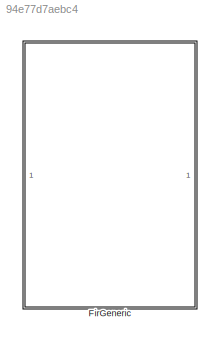
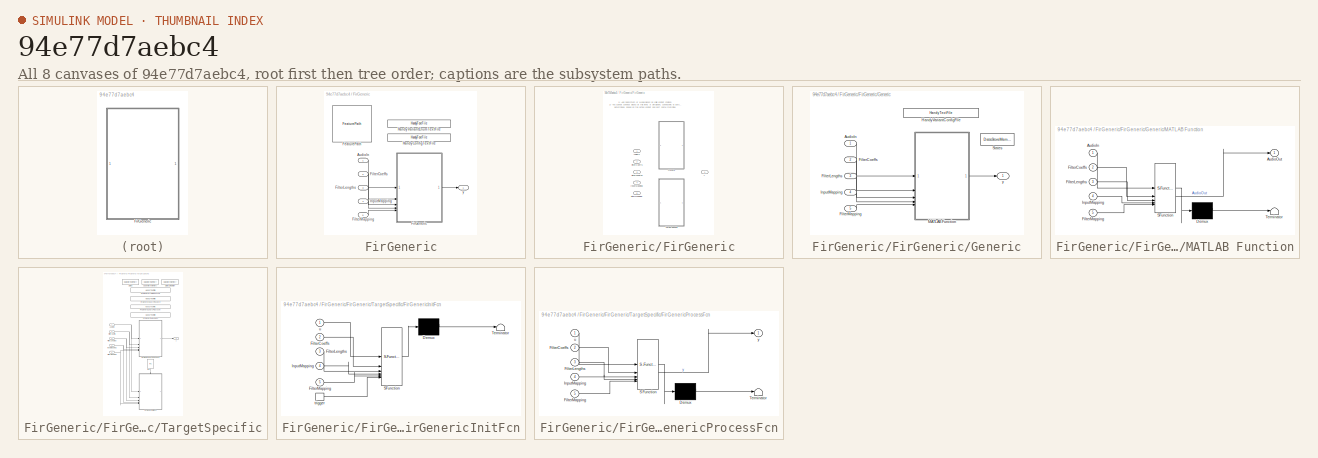
[diagram: thumbnail index - all 8 canvases of the model, root first then tree order]
MODEL slx_94e77d7aebc4
KIND library
CONFIG AbsTol = auto
CONFIG EnableMultiTasking = off
CONFIG FixedStep = auto
CONFIG MaxStep = auto
CONFIG MinStep = auto
CONFIG RelTol = 1e-3
CONFIG SampleTimeConstraint = Unconstrained
CONFIG SolverName = VariableStepAuto
CONFIG StartTime = 0.0
CONFIG StopTime = 10.0
BLOCK [SubSystem] FirGeneric
BLOCK [Inport] FirGeneric/AudioIn
BLOCK [Reference] FirGeneric/FeaturePath  REF=FeaturePath/FeaturePath
  SourceBlock = FeaturePath/FeaturePath
  SourceProductName = Bose Talaria
  SourceType = Talaria Feature Path
BLOCK [Inport] FirGeneric/FilterCoeffs
  Port = 2
BLOCK [Inport] FirGeneric/FilterLengths
  Port = 3
BLOCK [Inport] FirGeneric/FilterMapping
  Port = 5
BLOCK [SubSystem] FirGeneric/FirGeneric
  Variant = on
BLOCK [Inport] FirGeneric/FirGeneric/AudioIn
BLOCK [Inport] FirGeneric/FirGeneric/FilterCoeffs
  Port = 2
BLOCK [Inport] FirGeneric/FirGeneric/FilterLengths
  Port = 3
BLOCK [Inport] FirGeneric/FirGeneric/FilterMapping
  Port = 5
BLOCK [SubSystem] FirGeneric/FirGeneric/Generic
  VariantControl = (default)
BLOCK [Inport] FirGeneric/FirGeneric/Generic/AudioIn
BLOCK [Inport] FirGeneric/FirGeneric/Generic/FilterCoeffs
  Port = 2
BLOCK [Inport] FirGeneric/FirGeneric/Generic/FilterLengths
  Port = 3
BLOCK [Inport] FirGeneric/FirGeneric/Generic/FilterMapping
  Port = 5
BLOCK [Reference] FirGeneric/FirGeneric/Generic/HandyVariantConfigFile  REF=HandyTextFile/HandyTextFile
  SourceBlock = HandyTextFile/HandyTextFile
  SourceProductName = Bose Talaria
  SourceType = Talaria Handy Text File
BLOCK [Inport] FirGeneric/FirGeneric/Generic/InputMapping
  Port = 4
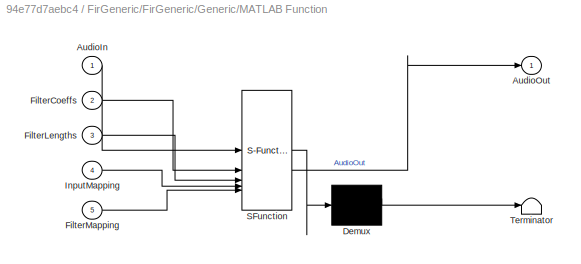
BLOCK [SubSystem] FirGeneric/FirGeneric/Generic/MATLAB Function
  ErrorFcn = Stateflow.Translate.translate
  LibrarySourceBlock = simulink/User-Defined\nFunctions/MATLAB Function
  PermitHierarchicalResolution = ExplicitOnly
  SFBlockType = MATLAB Function
  TreatAsAtomicUnit = on
BLOCK [Demux] FirGeneric/FirGeneric/Generic/MATLAB Function/ Demux 
  Outputs = 1
BLOCK [S-Function] FirGeneric/FirGeneric/Generic/MATLAB Function/ SFunction 
  EnableBusSupport = off
  FunctionName = sf_sfun
  Parameters = FrameSize,NumInputs,NumOutputs,StateBufferSize
  PortCounts = [5 2]
  SFcnIsStateOwnerBlock = off
  SFunctionDeploymentMode = off
  Tag = Stateflow S-Function 2
BLOCK [Terminator] FirGeneric/FirGeneric/Generic/MATLAB Function/ Terminator 
BLOCK [Inport] FirGeneric/FirGeneric/Generic/MATLAB Function/AudioIn
BLOCK [Outport] FirGeneric/FirGeneric/Generic/MATLAB Function/AudioOut
BLOCK [Inport] FirGeneric/FirGeneric/Generic/MATLAB Function/FilterCoeffs
  Port = 2
BLOCK [Inport] FirGeneric/FirGeneric/Generic/MATLAB Function/FilterLengths
  Port = 3
BLOCK [Inport] FirGeneric/FirGeneric/Generic/MATLAB Function/FilterMapping
  Port = 5
BLOCK [Inport] FirGeneric/FirGeneric/Generic/MATLAB Function/InputMapping
  Port = 4
BLOCK [DataStoreMemory] FirGeneric/FirGeneric/Generic/States
  DataStoreName = States
  InitialValue = single(zeros(Config.VariantObj.StateBufferSize,1))
  OutDataTypeStr = single
  ShowAdditionalParam = off
  SignalType = real
  WriteAfterWriteMsg = warning
BLOCK [Outport] FirGeneric/FirGeneric/Generic/y
BLOCK [Inport] FirGeneric/FirGeneric/InputMapping
  Port = 4
BLOCK [SubSystem] FirGeneric/FirGeneric/TargetSpecific
  VariantControl = (Config.Variant.StartsWith("Sharc")) || (Config.Variant == "Hexagon") || (Config.Variant == "ArmNeonV7V8")
BLOCK [Inport] FirGeneric/FirGeneric/TargetSpecific/AudioIn
BLOCK [DataStoreMemory] FirGeneric/FirGeneric/TargetSpecific/CodeWorkMemory
  DataStoreName = CodeWorkMemory
  InitialValue = uint32(zeros(1,Config.VariantObj.CodeWorkMemorySize))
  OutDataTypeStr = uint32
  ShowAdditionalParam = off
  SignalType = real
  WriteAfterWriteMsg = warning
BLOCK [Inport] FirGeneric/FirGeneric/TargetSpecific/FilterCoeffs
  Port = 2
BLOCK [Inport] FirGeneric/FirGeneric/TargetSpecific/FilterLengths
  Port = 3
BLOCK [Inport] FirGeneric/FirGeneric/TargetSpecific/FilterMapping
  Port = 5
BLOCK [Reference] FirGeneric/FirGeneric/TargetSpecific/FirGenericArmNeonV7V8  REF=HandyTextFile/HandyTextFile
  SourceBlock = HandyTextFile/HandyTextFile
  SourceProductName = Bose Talaria
  SourceType = Talaria Handy Text File
BLOCK [Reference] FirGeneric/FirGeneric/TargetSpecific/FirGenericHexagon  REF=HandyTextFile/HandyTextFile
  SourceBlock = HandyTextFile/HandyTextFile
  SourceProductName = Bose Talaria
  SourceType = Talaria Handy Text File
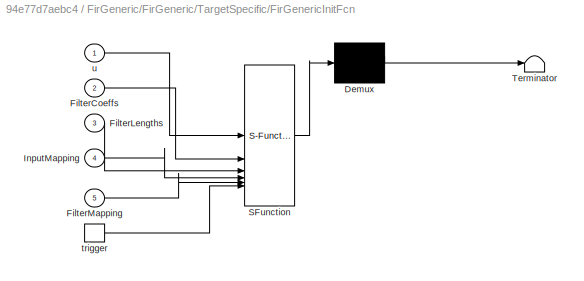
BLOCK [SubSystem] FirGeneric/FirGeneric/TargetSpecific/FirGenericInitFcn
  ErrorFcn = Stateflow.Translate.translate
  LibrarySourceBlock = simulink/User-Defined\nFunctions/MATLAB Function
  PermitHierarchicalResolution = ExplicitOnly
  SFBlockType = MATLAB Function
  TreatAsAtomicUnit = on
BLOCK [Demux] FirGeneric/FirGeneric/TargetSpecific/FirGenericInitFcn/ Demux 
  Outputs = 1
BLOCK [S-Function] FirGeneric/FirGeneric/TargetSpecific/FirGenericInitFcn/ SFunction 
  EnableBusSupport = off
  FunctionName = sf_sfun
  Parameters = VariantUint8
  PortCounts = [6 1]
  SFcnIsStateOwnerBlock = off
  SFunctionDeploymentMode = off
  Tag = Stateflow S-Function 4
BLOCK [Terminator] FirGeneric/FirGeneric/TargetSpecific/FirGenericInitFcn/ Terminator 
BLOCK [Inport] FirGeneric/FirGeneric/TargetSpecific/FirGenericInitFcn/FilterCoeffs
  Port = 2
BLOCK [Inport] FirGeneric/FirGeneric/TargetSpecific/FirGenericInitFcn/FilterLengths
  Port = 3
BLOCK [Inport] FirGeneric/FirGeneric/TargetSpecific/FirGenericInitFcn/FilterMapping
  Port = 5
BLOCK [Inport] FirGeneric/FirGeneric/TargetSpecific/FirGenericInitFcn/InputMapping
  Port = 4
BLOCK [TriggerPort] FirGeneric/FirGeneric/TargetSpecific/FirGenericInitFcn/trigger
  ShowOutputPort = on
  StatesWhenEnabling = held
  TriggerType = function-call
  VariantControl = (inherit)
BLOCK [Inport] FirGeneric/FirGeneric/TargetSpecific/FirGenericInitFcn/u
BLOCK [SubSystem] FirGeneric/FirGeneric/TargetSpecific/FirGenericProcessFcn
  ErrorFcn = Stateflow.Translate.translate
  LibrarySourceBlock = simulink/User-Defined\nFunctions/MATLAB Function
  PermitHierarchicalResolution = ExplicitOnly
  SFBlockType = MATLAB Function
  TreatAsAtomicUnit = on
BLOCK [Demux] FirGeneric/FirGeneric/TargetSpecific/FirGenericProcessFcn/ Demux 
  Outputs = 1
BLOCK [S-Function] FirGeneric/FirGeneric/TargetSpecific/FirGenericProcessFcn/ SFunction 
  EnableBusSupport = off
  FunctionName = sf_sfun
  Parameters = VariantUint8
  PortCounts = [5 2]
  SFcnIsStateOwnerBlock = off
  SFunctionDeploymentMode = off
  Tag = Stateflow S-Function 1
BLOCK [Terminator] FirGeneric/FirGeneric/TargetSpecific/FirGenericProcessFcn/ Terminator 
BLOCK [Inport] FirGeneric/FirGeneric/TargetSpecific/FirGenericProcessFcn/FilterCoeffs
  Port = 2
BLOCK [Inport] FirGeneric/FirGeneric/TargetSpecific/FirGenericProcessFcn/FilterLengths
  Port = 3
BLOCK [Inport] FirGeneric/FirGeneric/TargetSpecific/FirGenericProcessFcn/FilterMapping
  Port = 5
BLOCK [Inport] FirGeneric/FirGeneric/TargetSpecific/FirGenericProcessFcn/InputMapping
  Port = 4
BLOCK [Inport] FirGeneric/FirGeneric/TargetSpecific/FirGenericProcessFcn/u
BLOCK [Outport] FirGeneric/FirGeneric/TargetSpecific/FirGenericProcessFcn/y
BLOCK [Reference] FirGeneric/FirGeneric/TargetSpecific/FirGenericSharcPlusAccel  REF=HandyTextFile/HandyTextFile
  SourceBlock = HandyTextFile/HandyTextFile
  SourceProductName = Bose Talaria
  SourceType = Talaria Handy Text File
BLOCK [Reference] FirGeneric/FirGeneric/TargetSpecific/FirGenericSharcPlusCore  REF=HandyTextFile/HandyTextFile
  SourceBlock = HandyTextFile/HandyTextFile
  SourceProductName = Bose Talaria
  SourceType = Talaria Handy Text File
BLOCK [Reference] FirGeneric/FirGeneric/TargetSpecific/ITC  REF=ITC/ITC
  NameLocation = right
  SourceBlock = ITC/ITC
  SourceProductName = Bose Talaria
  SourceType = Talaria Initialization Trigger Control
BLOCK [Inport] FirGeneric/FirGeneric/TargetSpecific/InputMapping
  Port = 4
BLOCK [DataStoreMemory] FirGeneric/FirGeneric/TargetSpecific/States
  DataStoreName = States
  InitialValue = single(zeros(Config.VariantObj.StateBufferSize,1))
  OutDataTypeStr = single
  ShowAdditionalParam = off
  SignalType = real
  WriteAfterWriteMsg = warning
BLOCK [DataStoreMemory] FirGeneric/FirGeneric/TargetSpecific/StatesSimulation
  DataStoreName = StatesSimulation
  InitialValue = single(zeros(Config.StateBufferSizeSimulation,1))
  OutDataTypeStr = single
  ShowAdditionalParam = off
  SignalType = real
  WriteAfterWriteMsg = warning
BLOCK [Outport] FirGeneric/FirGeneric/TargetSpecific/y
BLOCK [Outport] FirGeneric/FirGeneric/y
BLOCK [Reference] FirGeneric/HandyConfigTextFile  REF=HandyTextFile/HandyTextFile
  SourceBlock = HandyTextFile/HandyTextFile
  SourceProductName = Bose Talaria
  SourceType = Talaria Handy Text File
BLOCK [Reference] FirGeneric/HandyVariantEnumTextFile  REF=HandyTextFile/HandyTextFile
  SourceBlock = HandyTextFile/HandyTextFile
  SourceProductName = Bose Talaria
  SourceType = Talaria Handy Text File
BLOCK [Inport] FirGeneric/InputMapping
  Port = 4
BLOCK [Outport] FirGeneric/y
ANNOTATION FirGeneric/FirGeneric: 1) Add Subsystem or Model blocks as valid variant choices. 2) You cannot connect blocks at this level. At simulation, connectivity is automatically determined, based on the active variant and port name matching.
LINE FirGeneric/AudioIn:1 -> FirGeneric/FirGeneric:1
LINE FirGeneric/FilterCoeffs:1 -> FirGeneric/FirGeneric:2
LINE FirGeneric/FilterLengths:1 -> FirGeneric/FirGeneric:3
LINE FirGeneric/FilterMapping:1 -> FirGeneric/FirGeneric:5
LINE FirGeneric/FirGeneric/Generic/AudioIn:1 -> FirGeneric/FirGeneric/Generic/MATLAB Function:1
LINE FirGeneric/FirGeneric/Generic/FilterCoeffs:1 -> FirGeneric/FirGeneric/Generic/MATLAB Function:2
LINE FirGeneric/FirGeneric/Generic/FilterLengths:1 -> FirGeneric/FirGeneric/Generic/MATLAB Function:3
LINE FirGeneric/FirGeneric/Generic/FilterMapping:1 -> FirGeneric/FirGeneric/Generic/MATLAB Function:5
LINE FirGeneric/FirGeneric/Generic/InputMapping:1 -> FirGeneric/FirGeneric/Generic/MATLAB Function:4
LINE FirGeneric/FirGeneric/Generic/MATLAB Function:1 -> FirGeneric/FirGeneric/Generic/y:1
NET FirGeneric/FirGeneric/TargetSpecific/AudioIn:1 -> FirGeneric/FirGeneric/TargetSpecific/FirGenericInitFcn:1, FirGeneric/FirGeneric/TargetSpecific/FirGenericProcessFcn:1
NET FirGeneric/FirGeneric/TargetSpecific/FilterCoeffs:1 -> FirGeneric/FirGeneric/TargetSpecific/FirGenericInitFcn:2, FirGeneric/FirGeneric/TargetSpecific/FirGenericProcessFcn:2
NET FirGeneric/FirGeneric/TargetSpecific/FilterLengths:1 -> FirGeneric/FirGeneric/TargetSpecific/FirGenericInitFcn:3, FirGeneric/FirGeneric/TargetSpecific/FirGenericProcessFcn:3
NET FirGeneric/FirGeneric/TargetSpecific/FilterMapping:1 -> FirGeneric/FirGeneric/TargetSpecific/FirGenericInitFcn:5, FirGeneric/FirGeneric/TargetSpecific/FirGenericProcessFcn:5
LINE FirGeneric/FirGeneric/TargetSpecific/FirGenericProcessFcn:1 -> FirGeneric/FirGeneric/TargetSpecific/y:1
LINE FirGeneric/FirGeneric/TargetSpecific/ITC:1 -> FirGeneric/FirGeneric/TargetSpecific/FirGenericInitFcn:trigger
NET FirGeneric/FirGeneric/TargetSpecific/InputMapping:1 -> FirGeneric/FirGeneric/TargetSpecific/FirGenericInitFcn:4, FirGeneric/FirGeneric/TargetSpecific/FirGenericProcessFcn:4
LINE FirGeneric/FirGeneric:1 -> FirGeneric/y:1
LINE FirGeneric/InputMapping:1 -> FirGeneric/FirGeneric:4
note: NET lines group one-source signal fan-out (src -> all destinations, sorted); 1:1 wires keep LINE
CHART FirGeneric/FirGeneric/TargetSpecific/FirGenericProcessFcn states=1 transitions=1
  STATE_LABEL 'eML_blk_kernel()'
  STATE_LABEL 'SCRIPT:\nfunction y = FirGenericProcess(u, FilterCoeffs, FilterLengths, InputMapping, FilterMapping, VariantUint8)\n% Generic FIR function to work with M inputs, N outputs and K filters\n%\n% Parameters:\n%   u:              input channels [frame size x number of inputs]\n%   FilterCoeffs:   coefficient sets [total filter lengths x 1]\n%   FilterLengths:  array of filter lengths [number of filters x 1]\n%...<+3399ch>'
CHART FirGeneric/FirGeneric/Generic/MATLAB Function states=1 transitions=1
  STATE_LABEL 'eML_blk_kernel()'
  STATE_LABEL 'SCRIPT:\nfunction AudioOut = FirGenericProcess(AudioIn, FilterCoeffs, FilterLengths, InputMapping, FilterMapping, NumInputs, FrameSize, NumOutputs, StateBufferSize)\nglobal States;\nAudioOut = FirGenericProcessSim(AudioIn, FilterCoeffs, numel(States), FilterLengths, ...\n                InputMapping, FilterMapping, FrameSize, NumOutputs);\n\nend\n\n'
CHART FirGeneric/FirGeneric/TargetSpecific/FirGenericInitFcn states=1 transitions=1
  STATE_LABEL 'eML_blk_kernel()'
  STATE_LABEL 'SCRIPT:\n function FirGenericInit(u, FilterCoeffs, FilterLengths, InputMapping, FilterMapping, VariantUint8)\n% Generic FIR function to work with M inputs, N outputs and K filters\n%\n% Parameters:\n%   u:              input channels [frame size x number of inputs]\n%   Filteroeffs:    coefficient sets [total filter lengths x 1]\n%   FilterLengths:  array of filter lengths [number of filters x 1]\n%   Inp...<+3608ch>'
CHART  states=0 transitions=0
CHART  states=0 transitions=0
CHART  states=0 transitions=0
